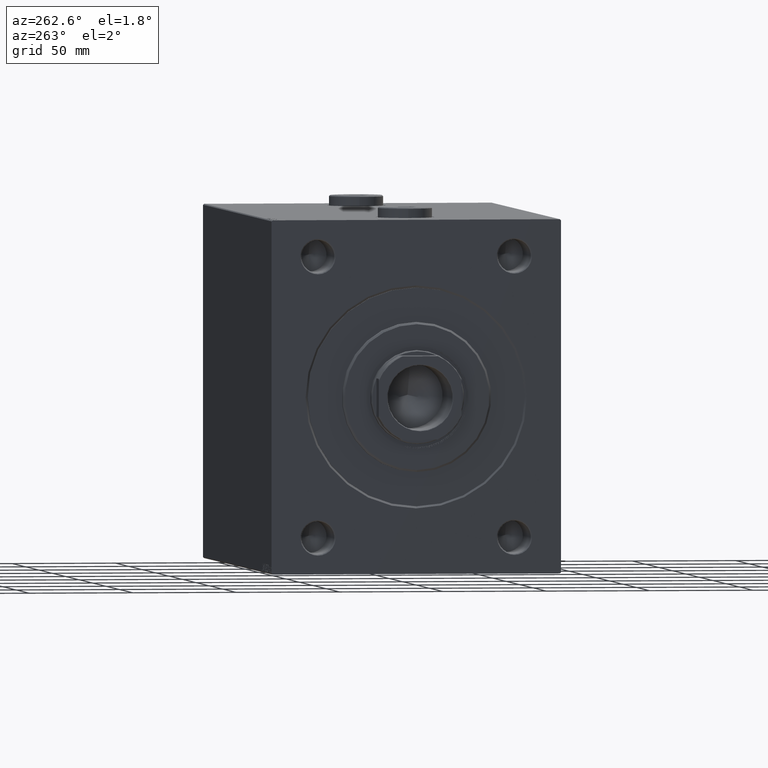
[diagram: clean part render]
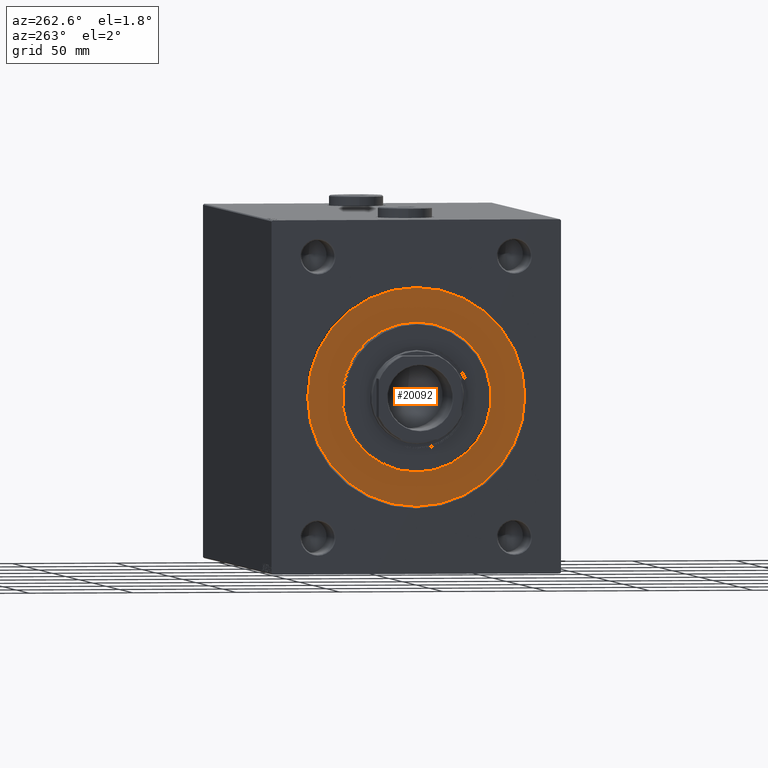
[diagram: same view with one face highlighted and labeled with its STEP entity id]
A machine part, auxiliary view. The second image highlights one B-rep face of the part: STEP entity #20092.
In plain terms, the highlighted planar face has unit normal (1, -0, -0).
Its self-contained STEP definition (entity closure, byte-faithful):
#63 = DIRECTION ( 'NONE',  ( 0.000000000000000000, 0.000000000000000000, -1.000000000000000000 ) ) ;
#671 = CARTESIAN_POINT ( 'NONE',  ( 0.000000000000000000, 4.408728476930470856E-15, -36.00000000000000000 ) ) ;
#1630 = ORIENTED_EDGE ( 'NONE', *, *, #15847, .F. ) ;
#3846 = AXIS2_PLACEMENT_3D ( 'NONE', #45285, #16855, #30948 ) ;
#4060 = DIRECTION ( 'NONE',  ( 0.000000000000000000, 0.000000000000000000, -1.000000000000000000 ) ) ;
#4476 = ORIENTED_EDGE ( 'NONE', *, *, #23952, .F. ) ;
#4808 = CIRCLE ( 'NONE', #19522, 52.49999999999999289 ) ;
#5061 = CIRCLE ( 'NONE', #36773, 36.00000000000000000 ) ;
#5846 = CARTESIAN_POINT ( 'NONE',  ( 0.000000000000000000, 6.429395695523603167E-15, 52.49999999999999289 ) ) ;
#6346 = CARTESIAN_POINT ( 'NONE',  ( 0.000000000000000000, 0.000000000000000000, 0.000000000000000000 ) ) ;
#6581 = DIRECTION ( 'NONE',  ( -1.000000000000000000, 0.000000000000000000, 0.000000000000000000 ) ) ;
#8346 = CARTESIAN_POINT ( 'NONE',  ( 0.000000000000000000, 0.000000000000000000, 0.000000000000000000 ) ) ;
#10111 = CARTESIAN_POINT ( 'NONE',  ( 0.000000000000000000, 0.000000000000000000, -52.49999999999999289 ) ) ;
#14168 = VERTEX_POINT ( 'NONE', #5846 ) ;
#14880 = CIRCLE ( 'NONE', #20766, 52.49999999999999289 ) ;
#15847 = EDGE_CURVE ( 'NONE', #20978, #29112, #34690, .T. ) ;
#16855 = DIRECTION ( 'NONE',  ( -1.000000000000000000, 0.000000000000000000, 0.000000000000000000 ) ) ;
#17383 = CARTESIAN_POINT ( 'NONE',  ( 0.000000000000000000, 0.000000000000000000, 0.000000000000000000 ) ) ;
#18368 = CARTESIAN_POINT ( 'NONE',  ( 0.000000000000000000, 0.000000000000000000, 0.000000000000000000 ) ) ;
#18957 = DIRECTION ( 'NONE',  ( -1.000000000000000000, 0.000000000000000000, 0.000000000000000000 ) ) ;
#19522 = AXIS2_PLACEMENT_3D ( 'NONE', #8346, #18957, #25894 ) ;
#20092 = ADVANCED_FACE ( 'NONE', ( #27474, #31174 ), #27250, .F. ) ;
#20766 = AXIS2_PLACEMENT_3D ( 'NONE', #6346, #6581, #23660 ) ;
#20978 = VERTEX_POINT ( 'NONE', #25364 ) ;
#21575 = EDGE_LOOP ( 'NONE', ( #30576, #4476 ) ) ;
#23607 = AXIS2_PLACEMENT_3D ( 'NONE', #17383, #24545, #63 ) ;
#23660 = DIRECTION ( 'NONE',  ( 0.000000000000000000, 0.000000000000000000, 1.000000000000000000 ) ) ;
#23952 = EDGE_CURVE ( 'NONE', #14168, #28178, #14880, .T. ) ;
#24545 = DIRECTION ( 'NONE',  ( 1.000000000000000000, -0.000000000000000000, 0.000000000000000000 ) ) ;
#25065 = DIRECTION ( 'NONE',  ( 1.000000000000000000, -0.000000000000000000, 0.000000000000000000 ) ) ;
#25364 = CARTESIAN_POINT ( 'NONE',  ( 0.000000000000000000, 0.000000000000000000, 36.00000000000000000 ) ) ;
#25894 = DIRECTION ( 'NONE',  ( 0.000000000000000000, 0.000000000000000000, 1.000000000000000000 ) ) ;
#25973 = EDGE_CURVE ( 'NONE', #28178, #14168, #4808, .T. ) ;
#27250 = PLANE ( 'NONE',  #3846 ) ;
#27474 = FACE_BOUND ( 'NONE', #28143, .T. ) ;
#28143 = EDGE_LOOP ( 'NONE', ( #1630, #43042 ) ) ;
#28178 = VERTEX_POINT ( 'NONE', #10111 ) ;
#29112 = VERTEX_POINT ( 'NONE', #671 ) ;
#30576 = ORIENTED_EDGE ( 'NONE', *, *, #25973, .F. ) ;
#30948 = DIRECTION ( 'NONE',  ( 0.000000000000000000, 0.000000000000000000, 1.000000000000000000 ) ) ;
#31174 = FACE_OUTER_BOUND ( 'NONE', #21575, .T. ) ;
#34690 = CIRCLE ( 'NONE', #23607, 36.00000000000000000 ) ;
#36773 = AXIS2_PLACEMENT_3D ( 'NONE', #18368, #25065, #4060 ) ;
#43042 = ORIENTED_EDGE ( 'NONE', *, *, #43301, .F. ) ;
#43301 = EDGE_CURVE ( 'NONE', #29112, #20978, #5061, .T. ) ;
#45285 = CARTESIAN_POINT ( 'NONE',  ( 0.000000000000000000, 0.000000000000000000, 0.000000000000000000 ) ) ;